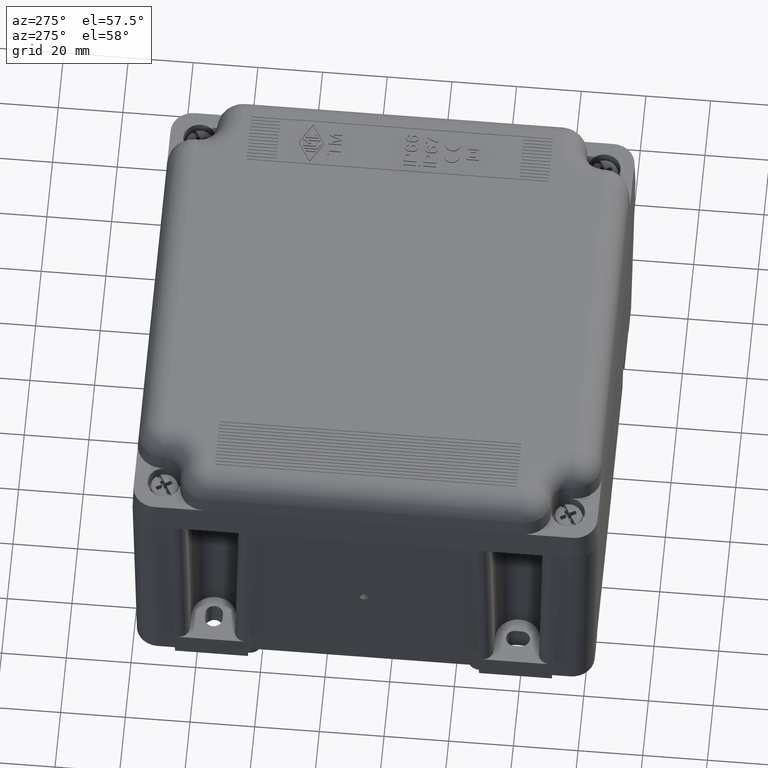
[diagram: clean part render]
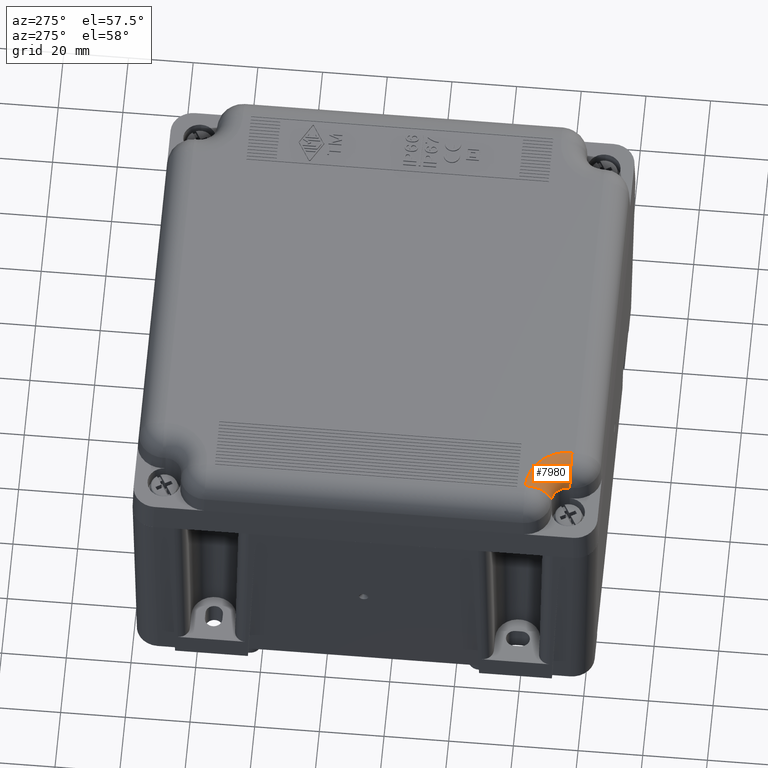
[diagram: same view with one face highlighted and labeled with its STEP entity id]
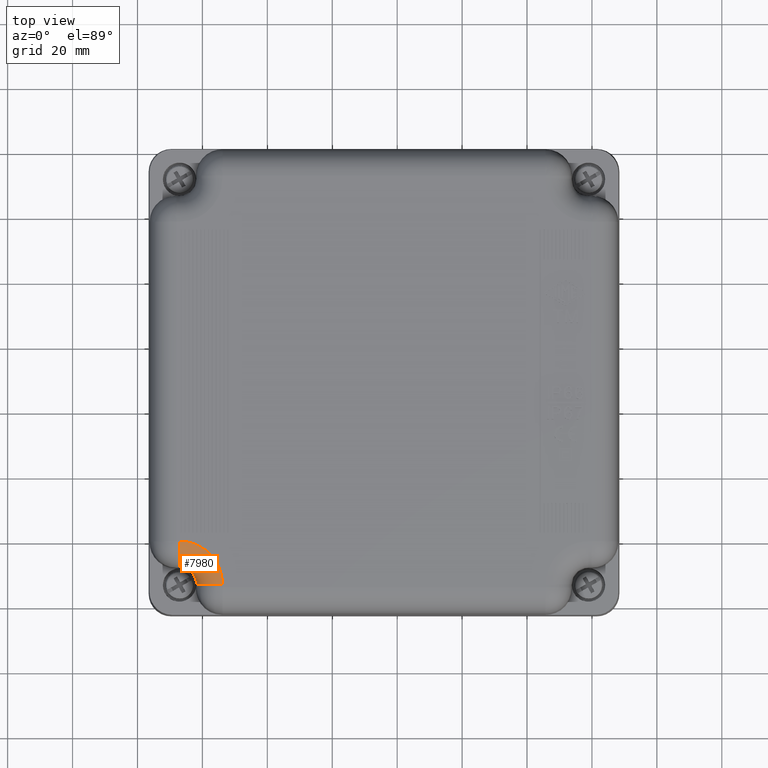
[diagram: same view with one face highlighted and labeled with its STEP entity id]
A machine part, auxiliary view. The second image highlights one B-rep face of the part: STEP entity #7980.
A second angle (top view) of the same face is appended — the face is thin or edge-on in the first view.
In plain terms, the highlighted toroidal blend (fillet) surface has major radius 13.2777 mm and minor (blend) radius 8 mm.
Its self-contained STEP definition (entity closure, byte-faithful):
#3250=CARTESIAN_POINT('',(340.999999999987,65.7804359166061,
-3.2905844135311));
#3260=VERTEX_POINT('',#3250);
#3290=CARTESIAN_POINT('',(340.999999999987,60.5000000000072,
-3.2905844135311));
#3300=DIRECTION('',(-1.70581791498354E-13,0.,1.));
#3310=DIRECTION('',(1.,0.,1.70581791498354E-13));
#3320=AXIS2_PLACEMENT_3D('',#3290,#3300,#3310);
#3330=CIRCLE('',#3320,5.280435916599);
#3340=CARTESIAN_POINT('',(346.280435916586,60.5000000000071,
-3.29058441353031));
#3350=VERTEX_POINT('',#3340);
#3360=EDGE_CURVE('',#3350,#3260,#3330,.T.);
#7650=CARTESIAN_POINT('',(340.999999999987,60.5000000000072,
-3.49999999999409));
#7660=DIRECTION('',(-1.70581791498354E-13,0.,1.));
#7670=DIRECTION('',(1.,0.,1.70581791498354E-13));
#7680=AXIS2_PLACEMENT_3D('',#7650,#7660,#7670);
#7690=TOROIDAL_SURFACE('',#7680,13.2776945164034,8.);
#7700=CARTESIAN_POINT('',(340.999999999987,73.7776945164106,
-3.49999999999409));
#7710=DIRECTION('',(-1.,3.1050520625381E-17,-1.70581791498354E-13));
#7720=DIRECTION('',(-1.70581791498354E-13,0.,1.));
#7730=AXIS2_PLACEMENT_3D('',#7700,#7710,#7720);
#7740=CIRCLE('',#7730,8.);
#7750=CARTESIAN_POINT('',(340.999999999986,73.7776945164106,
4.50000000000591));
#7760=VERTEX_POINT('',#7750);
#7770=EDGE_CURVE('',#3260,#7760,#7740,.T.);
#7780=ORIENTED_EDGE('',*,*,#7770,.F.);
#7790=CARTESIAN_POINT('',(340.999999999986,60.5000000000072,
4.50000000000591));
#7800=DIRECTION('',(-1.70581791498354E-13,0.,1.));
#7810=DIRECTION('',(1.,0.,1.7057592095053E-13));
#7820=AXIS2_PLACEMENT_3D('',#7790,#7800,#7810);
#7830=CIRCLE('',#7820,13.2776945164034);
#7840=CARTESIAN_POINT('',(354.277694516389,60.5000000000071,
4.50000000000818));
#7850=VERTEX_POINT('',#7840);
#7860=EDGE_CURVE('',#7850,#7760,#7830,.T.);
#7870=ORIENTED_EDGE('',*,*,#7860,.T.);
#7880=CARTESIAN_POINT('',(354.277694516391,60.5000000000071,
-3.49999999999194));
#7890=DIRECTION('',(-6.12533299437033E-17,1.,-1.04498249123636E-29));
#7900=DIRECTION('',(1.,6.12533299437033E-17,0.));
#7910=AXIS2_PLACEMENT_3D('',#7880,#7890,#7900);
#7920=CIRCLE('',#7910,8.);
#7930=EDGE_CURVE('',#3350,#7850,#7920,.T.);
#7940=ORIENTED_EDGE('',*,*,#7930,.T.);
#7950=ORIENTED_EDGE('',*,*,#3360,.F.);
#7960=EDGE_LOOP('',(#7950,#7940,#7870,#7780));
#7970=FACE_OUTER_BOUND('',#7960,.T.);
#7980=ADVANCED_FACE('',(#7970),#7690,.T.);